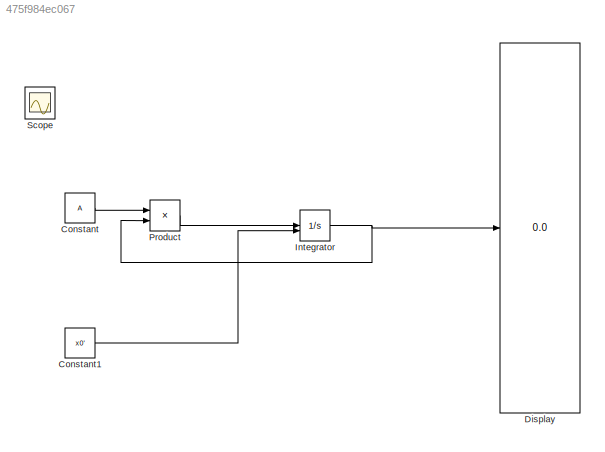
MODEL slx_475f984ec067
KIND model
CONFIG AbsTol = auto
CONFIG EnableMultiTasking = off
CONFIG FixedStep = auto
CONFIG MaxStep = auto
CONFIG MinStep = auto
CONFIG RelTol = 1e-3
CONFIG SampleTimeConstraint = Unconstrained
CONFIG SolverName = VariableStepAuto
CONFIG StartTime = 0.0
CONFIG StopTime = 0.1
BLOCK [Constant] Constant
  Value = A
BLOCK [Constant] Constant1
  Value = x0'
  VectorParams1D = off
BLOCK [Display] Display
  Decimation = 1
BLOCK [Integrator] Integrator
  InitialConditionSource = external
BLOCK [Product] Product
  Multiplication = Matrix(*)
BLOCK [Scope] Scope
  Floating = off
  IOType = viewer
  NumInputPorts = 1
  ScopeSpecificationString = Simulink.scopes.TimeScopeBlockCfg('CurrentConfiguration', extmgr.ConfigurationSet(extmgr.Configuration('Core','General UI',true),extmgr.Configuration('Core','Source UI',true),extmgr.Configuration('Sources','WiredSimulink',true),extmgr.Configuration('Visuals','Time Domain',true,'SerializedDisplays',{struct('MinYLimReal','-0.1435','MaxYLimReal','1.12706','YLabelReal','','MinYLimMag','0.00000','MaxYL...<+1746ch>
LINE Constant1:1 -> Integrator:2
LINE Constant:1 -> Product:1
NET Integrator:1 -> Display:1, Product:2
LINE Product:1 -> Integrator:1
note: NET lines group one-source signal fan-out (src -> all destinations, sorted); 1:1 wires keep LINE
